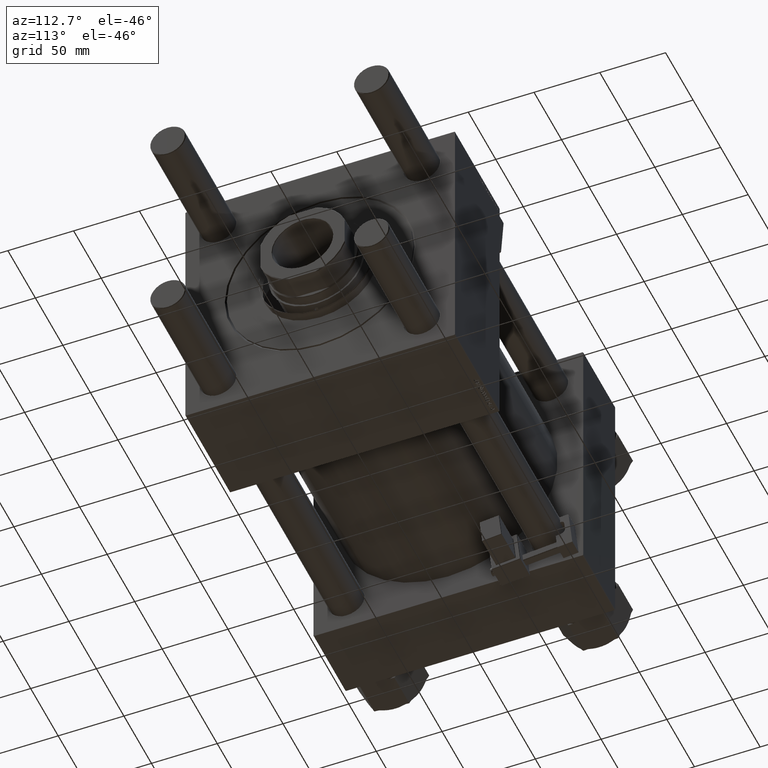
[diagram: clean part render]
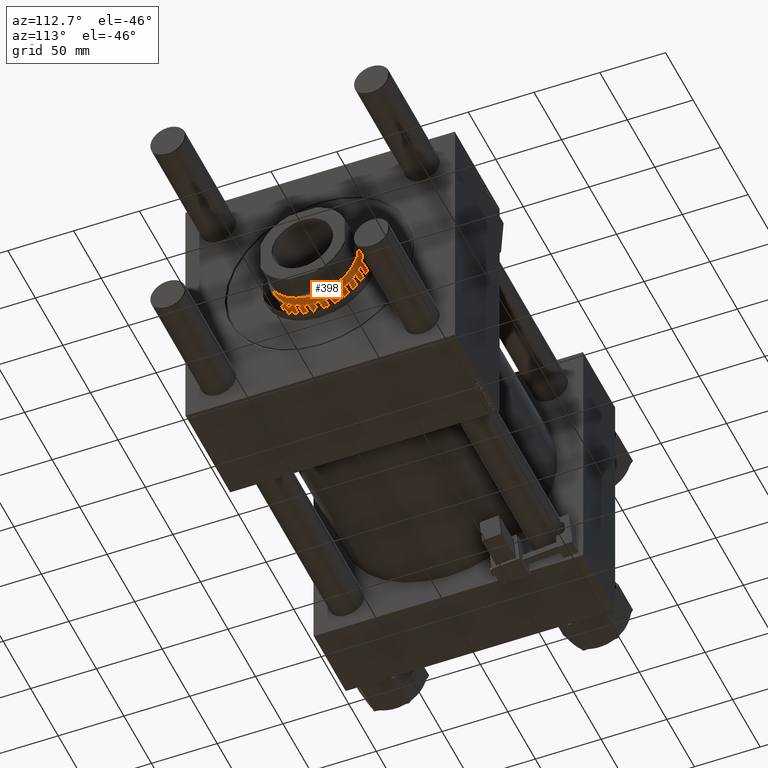
[diagram: same view with one face highlighted and labeled with its STEP entity id]
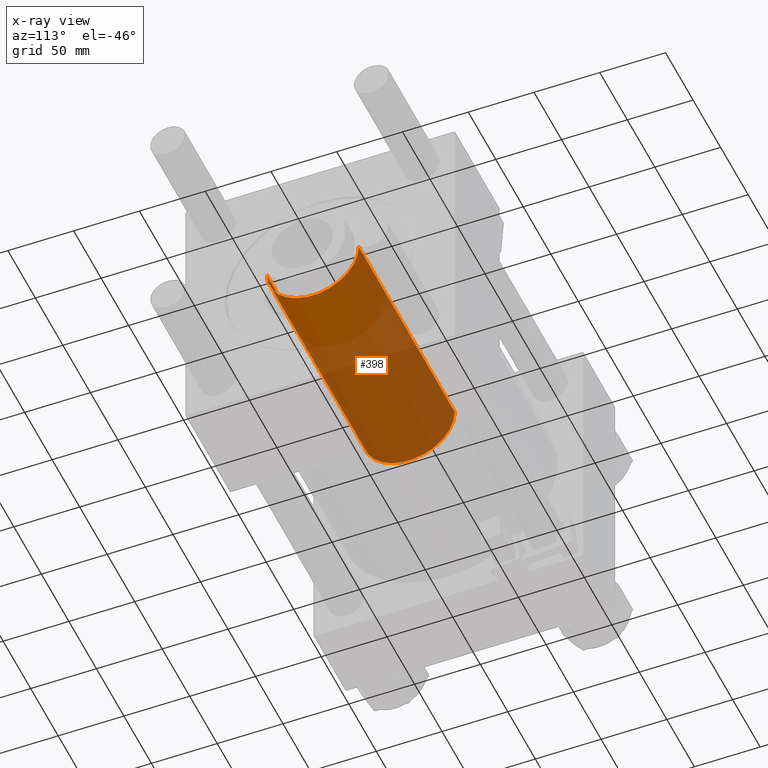
[diagram: x-ray of the same camera — body ghosted, the highlighted face saturated]
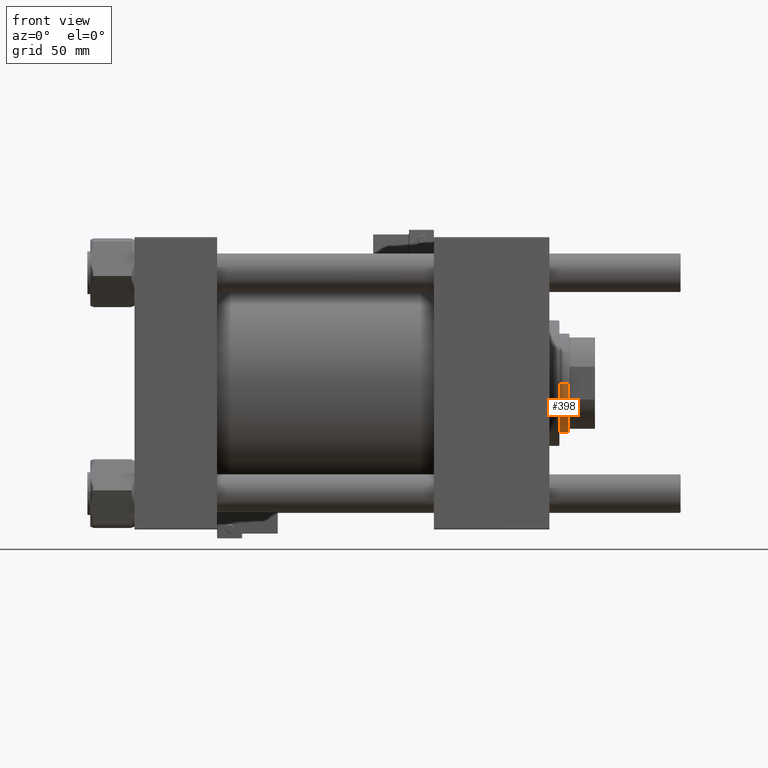
[diagram: same view with one face highlighted and labeled with its STEP entity id]
A machine part, auxiliary view. The second image highlights one B-rep face of the part: STEP entity #398.
The next image is the same camera in x-ray: the body ghosted, the highlighted face saturated — about 71% of this face is hidden behind the body in this view.
A second angle (front view) of the same face is appended — the face is thin or edge-on in the first view.
In plain terms, the highlighted cylindrical surface (partial cylindrical patch) has radius 35 mm, axis along (-1, 0, 0).
Its self-contained STEP definition (entity closure, byte-faithful):
#398 = ADVANCED_FACE ( 'NONE', ( #28156 ), #37519, .T. ) ;
#452 = DIRECTION ( 'NONE',  ( -0.000000000000000000, -0.000000000000000000, -1.000000000000000000 ) ) ;
#1337 = CARTESIAN_POINT ( 'NONE',  ( -35.00000000000000711, 0.000000000000000000, 247.0000000000000000 ) ) ;
#2950 = ORIENTED_EDGE ( 'NONE', *, *, #19108, .T. ) ;
#4265 = VERTEX_POINT ( 'NONE', #52121 ) ;
#5362 = AXIS2_PLACEMENT_3D ( 'NONE', #29065, #452, #46275 ) ;
#6339 = ORIENTED_EDGE ( 'NONE', *, *, #51280, .F. ) ;
#6446 = CARTESIAN_POINT ( 'NONE',  ( 0.000000000000000000, 0.000000000000000000, 246.5000000000000000 ) ) ;
#6742 = DIRECTION ( 'NONE',  ( 1.000000000000000000, 0.000000000000000000, 0.000000000000000000 ) ) ;
#8253 = CARTESIAN_POINT ( 'NONE',  ( 35.00000000000000711, 4.286263797015737285E-15, 72.00000000000000000 ) ) ;
#9748 = VERTEX_POINT ( 'NONE', #34406 ) ;
#11800 = CARTESIAN_POINT ( 'NONE',  ( 35.00000000000000711, 4.286263797015737285E-15, 247.0000000000000000 ) ) ;
#15792 = DIRECTION ( 'NONE',  ( 0.000000000000000000, 0.000000000000000000, -1.000000000000000000 ) ) ;
#15899 = DIRECTION ( 'NONE',  ( 0.000000000000000000, 0.000000000000000000, 1.000000000000000000 ) ) ;
#17262 = CARTESIAN_POINT ( 'NONE',  ( -35.00000000000000711, 0.000000000000000000, 246.5000000000000000 ) ) ;
#18324 = VERTEX_POINT ( 'NONE', #8253 ) ;
#19108 = EDGE_CURVE ( 'NONE', #18324, #9748, #22270, .T. ) ;
#21265 = AXIS2_PLACEMENT_3D ( 'NONE', #6446, #15792, #6742 ) ;
#21422 = DIRECTION ( 'NONE',  ( -0.000000000000000000, -0.000000000000000000, -1.000000000000000000 ) ) ;
#22270 = CIRCLE ( 'NONE', #33812, 35.00000000000000711 ) ;
#24525 = LINE ( 'NONE', #1337, #39387 ) ;
#24881 = ORIENTED_EDGE ( 'NONE', *, *, #56464, .T. ) ;
#28156 = FACE_OUTER_BOUND ( 'NONE', #58359, .T. ) ;
#29065 = CARTESIAN_POINT ( 'NONE',  ( 0.000000000000000000, 0.000000000000000000, 247.0000000000000000 ) ) ;
#29745 = DIRECTION ( 'NONE',  ( 1.000000000000000000, 0.000000000000000000, 0.000000000000000000 ) ) ;
#29922 = CIRCLE ( 'NONE', #21265, 35.00000000000000711 ) ;
#30687 = VECTOR ( 'NONE', #21422, 1000.000000000000000 ) ;
#33812 = AXIS2_PLACEMENT_3D ( 'NONE', #52668, #15899, #29745 ) ;
#34406 = CARTESIAN_POINT ( 'NONE',  ( -35.00000000000000711, 0.000000000000000000, 72.00000000000000000 ) ) ;
#36669 = VERTEX_POINT ( 'NONE', #17262 ) ;
#37519 = CYLINDRICAL_SURFACE ( 'NONE', #5362, 35.00000000000000711 ) ;
#39387 = VECTOR ( 'NONE', #47457, 1000.000000000000000 ) ;
#39510 = LINE ( 'NONE', #11800, #30687 ) ;
#41697 = ORIENTED_EDGE ( 'NONE', *, *, #51692, .T. ) ;
#46275 = DIRECTION ( 'NONE',  ( -1.000000000000000000, 0.000000000000000000, 0.000000000000000000 ) ) ;
#47457 = DIRECTION ( 'NONE',  ( -0.000000000000000000, -0.000000000000000000, -1.000000000000000000 ) ) ;
#51280 = EDGE_CURVE ( 'NONE', #36669, #9748, #24525, .T. ) ;
#51692 = EDGE_CURVE ( 'NONE', #4265, #18324, #39510, .T. ) ;
#52121 = CARTESIAN_POINT ( 'NONE',  ( 35.00000000000000711, 4.286263797015737285E-15, 246.5000000000000000 ) ) ;
#52668 = CARTESIAN_POINT ( 'NONE',  ( 0.000000000000000000, 0.000000000000000000, 72.00000000000000000 ) ) ;
#56464 = EDGE_CURVE ( 'NONE', #36669, #4265, #29922, .T. ) ;
#58359 = EDGE_LOOP ( 'NONE', ( #24881, #41697, #2950, #6339 ) ) ;